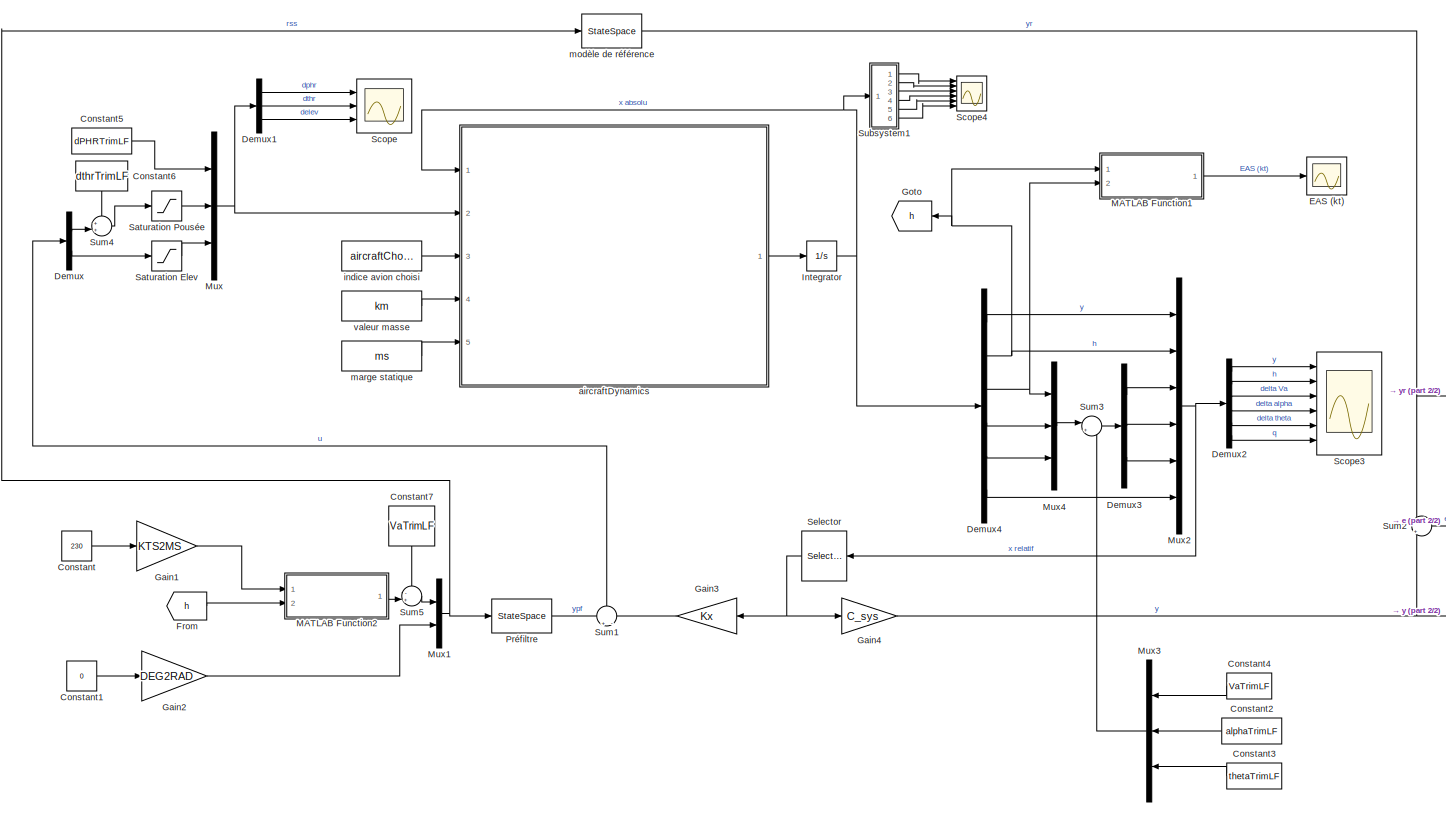
[diagram: root canvas - part 1/2, most of the canvas]
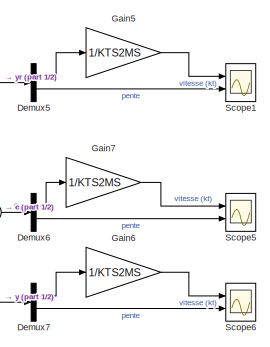
[diagram: root canvas - part 2/2, middle right region]
MODEL slx_b275f4780516
KIND model
CONFIG AbsTol = auto
CONFIG EnableMultiTasking = off
CONFIG FixedStep = auto
CONFIG MaxStep = auto
CONFIG MinStep = auto
CONFIG RelTol = 1e-3
CONFIG SampleTimeConstraint = Unconstrained
CONFIG Solver = VariableStepAuto
CONFIG SolverName = VariableStepAuto
CONFIG StartTime = 0.0
CONFIG StopTime = 1000
BLOCK [Constant] Constant
  Value = 230
BLOCK [Constant] Constant1
  Value = 0
BLOCK [Constant] Constant2
  Value = alphaTrimLF
BLOCK [Constant] Constant3
  Value = thetaTrimLF
BLOCK [Constant] Constant4
  Value = VaTrimLF
BLOCK [Constant] Constant5
  Value = dPHRTrimLF
BLOCK [Constant] Constant6
  Value = dthrTrimLF
BLOCK [Constant] Constant7
  Value = VaTrimLF
BLOCK [Demux] Demux
  DisplayOption = bar
  Outputs = 2
  Ports = [1, 2]
BLOCK [Demux] Demux1
  DisplayOption = bar
  Outputs = 3
  Ports = [1, 3]
BLOCK [Demux] Demux2
  DisplayOption = bar
  Outputs = 6
  Ports = [1, 6]
BLOCK [Demux] Demux3
  DisplayOption = bar
  Outputs = 3
  Ports = [1, 3]
BLOCK [Demux] Demux4
  DisplayOption = bar
  Outputs = 6
  Ports = [1, 6]
BLOCK [Demux] Demux5
  DisplayOption = bar
  Outputs = 2
  Ports = [1, 2]
BLOCK [Demux] Demux6
  DisplayOption = bar
  Outputs = 2
  Ports = [1, 2]
BLOCK [Demux] Demux7
  DisplayOption = bar
  Outputs = 2
  Ports = [1, 2]
BLOCK [Scope] EAS (kt)
  Floating = off
  NumInputPorts = 1
  Ports = [1]
  ScopeSpecificationString = Simulink.scopes.TimeScopeBlockCfg('CurrentConfiguration', extmgr.ConfigurationSet(extmgr.Configuration('Core','General UI',true,'FigureColor',[1 1 1]),extmgr.Configuration('Core','Source UI',true),extmgr.Configuration('Sources','WiredSimulink',true,'DataLoggingVariableName','ScopeData3'),extmgr.Configuration('Visuals','Time Domain',true,'SerializedDisplays',{struct('MinYLimReal','225.09828','MaxYL...<+1632ch>
BLOCK [From] From
  GotoTag = h
BLOCK [Gain] Gain1
  Gain = KTS2MS
  OutDataTypeStr = Inherit: Inherit via internal rule
  ParamDataTypeStr = Inherit: Inherit via internal rule
  SaturateOnIntegerOverflow = off
BLOCK [Gain] Gain2
  Gain = DEG2RAD
  OutDataTypeStr = Inherit: Inherit via internal rule
  ParamDataTypeStr = Inherit: Inherit via internal rule
  SaturateOnIntegerOverflow = off
BLOCK [Gain] Gain3
  Gain = Kx
  Multiplication = Matrix(K*u) (u vector)
  OutDataTypeStr = Inherit: Inherit via internal rule
  ParamDataTypeStr = Inherit: Inherit via internal rule
  SaturateOnIntegerOverflow = off
BLOCK [Gain] Gain4
  Gain = C_sys
  Multiplication = Matrix(K*u) (u vector)
  OutDataTypeStr = Inherit: Inherit via internal rule
  ParamDataTypeStr = Inherit: Inherit via internal rule
  SaturateOnIntegerOverflow = off
BLOCK [Gain] Gain5
  Gain = 1/KTS2MS
  OutDataTypeStr = Inherit: Inherit via internal rule
  ParamDataTypeStr = Inherit: Inherit via internal rule
  SaturateOnIntegerOverflow = off
BLOCK [Gain] Gain6
  Gain = 1/KTS2MS
  OutDataTypeStr = Inherit: Inherit via internal rule
  ParamDataTypeStr = Inherit: Inherit via internal rule
  SaturateOnIntegerOverflow = off
BLOCK [Gain] Gain7
  Gain = 1/KTS2MS
  OutDataTypeStr = Inherit: Inherit via internal rule
  ParamDataTypeStr = Inherit: Inherit via internal rule
  SaturateOnIntegerOverflow = off
BLOCK [Goto] Goto
  GotoTag = h
BLOCK [Integrator] Integrator
  InitialCondition = xTrim
  Ports = [1, 1]
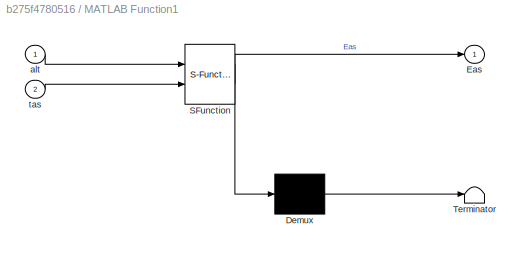
BLOCK [SubSystem] MATLAB Function1
  ErrorFcn = Stateflow.Translate.translate
  PermitHierarchicalResolution = ExplicitOnly
  Ports = [2, 1]
  RequestExecContextInheritance = off
  SFBlockType = MATLAB Function
  TreatAsAtomicUnit = on
BLOCK [Demux] MATLAB Function1/ Demux 
  Outputs = 1
  Ports = [1, 1]
BLOCK [S-Function] MATLAB Function1/ SFunction 
  EnableBusSupport = on
  FunctionName = sf_sfun
  PortCounts = [2 2]
  Ports = [2, 2]
  SFcnIsStateOwnerBlock = off
  SFunctionDeploymentMode = off
  Tag = Stateflow S-Function Golf_Nonlin_Optimale 3
BLOCK [Terminator] MATLAB Function1/ Terminator 
BLOCK [Outport] MATLAB Function1/Eas
  IconDisplay = Port number
BLOCK [Inport] MATLAB Function1/alt
  IconDisplay = Port number
BLOCK [Inport] MATLAB Function1/tas
  IconDisplay = Port number
  Port = 2
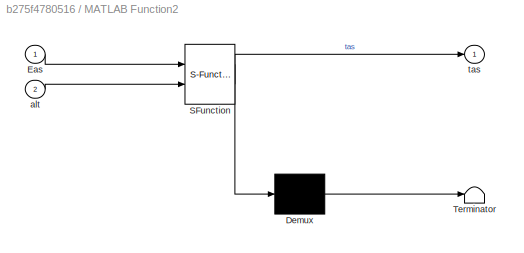
BLOCK [SubSystem] MATLAB Function2
  ErrorFcn = Stateflow.Translate.translate
  PermitHierarchicalResolution = ExplicitOnly
  Ports = [2, 1]
  RequestExecContextInheritance = off
  SFBlockType = MATLAB Function
  TreatAsAtomicUnit = on
BLOCK [Demux] MATLAB Function2/ Demux 
  Outputs = 1
  Ports = [1, 1]
BLOCK [S-Function] MATLAB Function2/ SFunction 
  EnableBusSupport = on
  FunctionName = sf_sfun
  PortCounts = [2 2]
  Ports = [2, 2]
  SFcnIsStateOwnerBlock = off
  SFunctionDeploymentMode = off
  Tag = Stateflow S-Function Golf_Nonlin_Optimale 1
BLOCK [Terminator] MATLAB Function2/ Terminator 
BLOCK [Inport] MATLAB Function2/Eas
  IconDisplay = Port number
BLOCK [Inport] MATLAB Function2/alt
  IconDisplay = Port number
  Port = 2
BLOCK [Outport] MATLAB Function2/tas
  IconDisplay = Port number
BLOCK [Mux] Mux
  DisplayOption = bar
  Inputs = 3
  Ports = [3, 1]
BLOCK [Mux] Mux1
  DisplayOption = bar
  Inputs = 2
  Ports = [2, 1]
BLOCK [Mux] Mux2
  DisplayOption = bar
  Inputs = 6
  Ports = [6, 1]
BLOCK [Mux] Mux3
  DisplayOption = bar
  Inputs = 3
  Ports = [3, 1]
BLOCK [Mux] Mux4
  DisplayOption = bar
  Inputs = 3
  Ports = [3, 1]
BLOCK [StateSpace] Préfiltre
  A = Ar
  B = Br
  C = -Kr
  D = Dpf
  InitialCondition = 0
  Ports = [1, 1]
BLOCK [Saturate] Saturation Elev
  InputPortMap = u0
  LowerLimit = -30*DEG2RAD
  Ports = [1, 1]
  UpperLimit = 30*DEG2RAD
BLOCK [Saturate] Saturation Pousée
  InputPortMap = u0
  LowerLimit = 0
  Ports = [1, 1]
  UpperLimit = 1
BLOCK [Scope] Scope
  Floating = off
  NumInputPorts = 3
  Ports = [3]
  ScopeSpecificationString = Simulink.scopes.TimeScopeBlockCfg('CurrentConfiguration', extmgr.ConfigurationSet(extmgr.Configuration('Core','General UI',true),extmgr.Configuration('Core','Source UI',true),extmgr.Configuration('Sources','WiredSimulink',true),extmgr.Configuration('Visuals','Time Domain',true,'SerializedDisplays',{struct('MinYLimReal','-0.50918','MaxYLimReal','0.38958','YLabelReal','','MinYLimMag','0.00000','MaxY...<+1392ch>
BLOCK [Scope] Scope1
  Floating = off
  NumInputPorts = 2
  Ports = [2]
  ScopeSpecificationString = Simulink.scopes.TimeScopeBlockCfg('CurrentConfiguration', extmgr.ConfigurationSet(extmgr.Configuration('Core','General UI',true),extmgr.Configuration('Core','Source UI',true),extmgr.Configuration('Sources','WiredSimulink',true,'DataLoggingVariableName','ScopeData1'),extmgr.Configuration('Visuals','Time Domain',true,'SerializedDisplays',{struct('MinYLimReal','-5.97208','MaxYLimReal','53.74868','YLa...<+1444ch>
BLOCK [Scope] Scope3
  Floating = off
  NumInputPorts = 6
  Ports = [6]
  ScopeSpecificationString = Simulink.scopes.TimeScopeBlockCfg('CurrentConfiguration', extmgr.ConfigurationSet(extmgr.Configuration('Core','General UI',true,'FigureColor',[1 1 1]),extmgr.Configuration('Core','Source UI',true),extmgr.Configuration('Sources','WiredSimulink',true,'DataLoggingVariableName','ScopeData4'),extmgr.Configuration('Visuals','Time Domain',true,'SerializedDisplays',{struct('MinYLimReal','-1683.85848','Max...<+2334ch>
BLOCK [Scope] Scope4
  Floating = off
  NumInputPorts = 6
  Ports = [6]
  ScopeSpecificationString = Simulink.scopes.TimeScopeBlockCfg('CurrentConfiguration', extmgr.ConfigurationSet(extmgr.Configuration('Core','General UI',true),extmgr.Configuration('Core','Source UI',true),extmgr.Configuration('Sources','WiredSimulink',true,'DataLoggingVariableName','ScopeData5'),extmgr.Configuration('Visuals','Time Domain',true,'SerializedDisplays',{struct('MinYLimReal','-1880.04271','MaxYLimReal','16919.3409'...<+1698ch>
BLOCK [Scope] Scope5
  Floating = off
  NumInputPorts = 2
  Ports = [2]
  ScopeSpecificationString = Simulink.scopes.TimeScopeBlockCfg('CurrentConfiguration', extmgr.ConfigurationSet(extmgr.Configuration('Core','General UI',true),extmgr.Configuration('Core','Source UI',true),extmgr.Configuration('Sources','WiredSimulink',true,'DataLoggingVariableName','ScopeData6'),extmgr.Configuration('Visuals','Time Domain',true,'SerializedDisplays',{struct('MinYLimReal','-4.19413','MaxYLimReal','88.22895','YLa...<+1440ch>
BLOCK [Scope] Scope6
  Floating = off
  NumInputPorts = 2
  Ports = [2]
  ScopeSpecificationString = Simulink.scopes.TimeScopeBlockCfg('CurrentConfiguration', extmgr.ConfigurationSet(extmgr.Configuration('Core','General UI',true),extmgr.Configuration('Core','Source UI',true),extmgr.Configuration('Sources','WiredSimulink',true,'DataLoggingVariableName','ScopeData7'),extmgr.Configuration('Visuals','Time Domain',true,'SerializedDisplays',{struct('MinYLimReal','-11.06482','MaxYLimReal','98.62637','YL...<+1446ch>
BLOCK [Selector] Selector
  IndexOptions = Index vector (dialog)
  Indices = [3:6]
  InputPortWidth = 6
  OutputSizes = 1
  Ports = [1, 1]
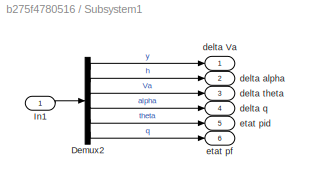
BLOCK [SubSystem] Subsystem1
  Ports = [1, 6]
  RequestExecContextInheritance = off
  ShowPortLabels = none
BLOCK [Demux] Subsystem1/Demux2
  DisplayOption = bar
  Outputs = 6
  Ports = [1, 6]
BLOCK [Inport] Subsystem1/In1
  IconDisplay = Port number
BLOCK [Outport] Subsystem1/delta Va
  IconDisplay = Port number
BLOCK [Outport] Subsystem1/delta alpha
  IconDisplay = Port number
  Port = 2
BLOCK [Outport] Subsystem1/delta q
  IconDisplay = Port number
  Port = 4
BLOCK [Outport] Subsystem1/delta theta
  IconDisplay = Port number
  Port = 3
BLOCK [Outport] Subsystem1/etat pf
  IconDisplay = Port number
  Port = 6
BLOCK [Outport] Subsystem1/etat pid
  IconDisplay = Port number
  Port = 5
BLOCK [Sum] Sum1
  IconShape = round
  InputSameDT = off
  Inputs = +|-
  OutDataTypeStr = Inherit: Inherit via internal rule
  Ports = [2, 1]
  SaturateOnIntegerOverflow = off
BLOCK [Sum] Sum2
  IconShape = round
  InputSameDT = off
  Inputs = -|+
  OutDataTypeStr = Inherit: Inherit via internal rule
  Ports = [2, 1]
  SaturateOnIntegerOverflow = off
BLOCK [Sum] Sum3
  IconShape = round
  InputSameDT = off
  Inputs = |+-
  OutDataTypeStr = Inherit: Inherit via internal rule
  Ports = [2, 1]
  SaturateOnIntegerOverflow = off
BLOCK [Sum] Sum4
  IconShape = round
  InputSameDT = off
  Inputs = ++|
  OutDataTypeStr = Inherit: Inherit via internal rule
  Ports = [2, 1]
  SaturateOnIntegerOverflow = off
BLOCK [Sum] Sum5
  IconShape = round
  InputSameDT = off
  Inputs = -+|
  OutDataTypeStr = Inherit: Inherit via internal rule
  Ports = [2, 1]
  SaturateOnIntegerOverflow = off
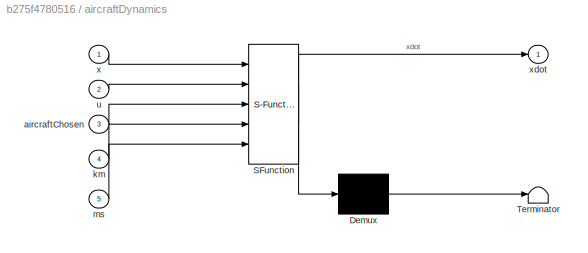
BLOCK [SubSystem] aircraftDynamics
  ErrorFcn = Stateflow.Translate.translate
  PermitHierarchicalResolution = ExplicitOnly
  Ports = [5, 1]
  RequestExecContextInheritance = off
  SFBlockType = MATLAB Function
  TreatAsAtomicUnit = on
BLOCK [Demux] aircraftDynamics/ Demux 
  Outputs = 1
  Ports = [1, 1]
BLOCK [S-Function] aircraftDynamics/ SFunction 
  EnableBusSupport = on
  FunctionName = sf_sfun
  PortCounts = [5 2]
  Ports = [5, 2]
  SFcnIsStateOwnerBlock = off
  SFunctionDeploymentMode = off
  Tag = Stateflow S-Function Golf_Nonlin_Optimale 2
BLOCK [Terminator] aircraftDynamics/ Terminator 
BLOCK [Inport] aircraftDynamics/aircraftChosen
  IconDisplay = Port number
  Port = 3
BLOCK [Inport] aircraftDynamics/km
  IconDisplay = Port number
  Port = 4
BLOCK [Inport] aircraftDynamics/ms
  IconDisplay = Port number
  Port = 5
BLOCK [Inport] aircraftDynamics/u
  IconDisplay = Port number
  Port = 2
BLOCK [Inport] aircraftDynamics/x
  IconDisplay = Port number
BLOCK [Outport] aircraftDynamics/xdot
  IconDisplay = Port number
BLOCK [Constant] indice avion choisi
  Value = aircraftChosen
BLOCK [Constant] marge statique
  Value = ms
BLOCK [StateSpace] modèle de référence
  A = Ar
  B = Br
  C = Cr
  D = Dr
  InitialCondition = 0
  Ports = [1, 1]
BLOCK [Constant] valeur masse
  Value = km
LINE Constant1:1 -> Gain2:1
LINE Constant2:1 -> Mux3:2
LINE Constant3:1 -> Mux3:3
LINE Constant4:1 -> Mux3:1
LINE Constant5:1 -> Mux:1
LINE Constant6:1 -> Sum4:1
LINE Constant7:1 -> Sum5:1
LINE Constant:1 -> Gain1:1
LINE Demux1:1 -> Scope:1
LINE Demux1:2 -> Scope:2
LINE Demux1:3 -> Scope:3
LINE Demux2:1 -> Scope3:1
LINE Demux2:2 -> Scope3:2
LINE Demux2:3 -> Scope3:3
LINE Demux2:4 -> Scope3:4
LINE Demux2:5 -> Scope3:5
LINE Demux2:6 -> Scope3:6
LINE Demux3:1 -> Mux2:3
LINE Demux3:2 -> Mux2:4
LINE Demux3:3 -> Mux2:5
LINE Demux4:1 -> Mux2:1
NET Demux4:2 -> Goto:1, MATLAB Function1:1, Mux2:2
NET Demux4:3 -> MATLAB Function1:2, Mux4:1
LINE Demux4:4 -> Mux4:2
LINE Demux4:5 -> Mux4:3
LINE Demux4:6 -> Mux2:6
LINE Demux5:1 -> Gain5:1
LINE Demux5:2 -> Scope1:2
LINE Demux6:1 -> Gain7:1
LINE Demux6:2 -> Scope5:2
LINE Demux7:1 -> Gain6:1
LINE Demux7:2 -> Scope6:2
LINE Demux:1 -> Sum4:2
LINE Demux:2 -> Saturation Elev:1
LINE From:1 -> MATLAB Function2:2
LINE Gain1:1 -> MATLAB Function2:1
LINE Gain2:1 -> Mux1:2
LINE Gain3:1 -> Sum1:2
NET Gain4:1 -> Demux7:1, Sum2:2
LINE Gain5:1 -> Scope1:1
LINE Gain6:1 -> Scope6:1
LINE Gain7:1 -> Scope5:1
NET Integrator:1 -> Demux4:1, Subsystem1:1, aircraftDynamics:1
LINE MATLAB Function1:1 -> EAS (kt):1
LINE MATLAB Function2:1 -> Sum5:2
NET Mux1:1 -> Préfiltre:1, modèle de référence:1
NET Mux2:1 -> Demux2:1, Selector:1
LINE Mux3:1 -> Sum3:2
LINE Mux4:1 -> Sum3:1
NET Mux:1 -> Demux1:1, aircraftDynamics:2
LINE Préfiltre:1 -> Sum1:1
LINE Saturation Elev:1 -> Mux:3
LINE Saturation Pousée:1 -> Mux:2
NET Selector:1 -> Gain3:1, Gain4:1
LINE Subsystem1/Demux2:1 -> Subsystem1/delta Va:1
LINE Subsystem1/Demux2:2 -> Subsystem1/delta alpha:1
LINE Subsystem1/Demux2:3 -> Subsystem1/delta theta:1
LINE Subsystem1/Demux2:4 -> Subsystem1/delta q:1
LINE Subsystem1/Demux2:5 -> Subsystem1/etat pid:1
LINE Subsystem1/Demux2:6 -> Subsystem1/etat pf:1
LINE Subsystem1/In1:1 -> Subsystem1/Demux2:1
LINE Subsystem1:1 -> Scope4:1
LINE Subsystem1:2 -> Scope4:2
LINE Subsystem1:3 -> Scope4:3
LINE Subsystem1:4 -> Scope4:4
LINE Subsystem1:5 -> Scope4:5
LINE Subsystem1:6 -> Scope4:6
LINE Sum1:1 -> Demux:1
LINE Sum2:1 -> Demux6:1
LINE Sum3:1 -> Demux3:1
LINE Sum4:1 -> Saturation Pousée:1
LINE Sum5:1 -> Mux1:1
LINE aircraftDynamics:1 -> Integrator:1
LINE indice avion choisi:1 -> aircraftDynamics:3
LINE marge statique:1 -> aircraftDynamics:5
NET modèle de référence:1 -> Demux5:1, Sum2:1
LINE valeur masse:1 -> aircraftDynamics:4
note: NET lines group one-source signal fan-out (src -> all destinations, sorted); 1:1 wires keep LINE
CHART MATLAB Function2 states=1 transitions=1
  STATE_LABEL 'eML_blk_kernel()'
  STATE_LABEL 'SCRIPT:\nfunction tas = utEas2tas(Eas, alt)\n    %tas, Eas (%equivalent vitesse) en m/s\n    %alt en m\n    %cf. http://www.hochwarth.com/misc/AviationCalculator.html\n    tas = sqrt(utRho(0)/utRho(alt))*Eas;\nend '
CHART aircraftDynamics states=1 transitions=1
  STATE_LABEL 'eML_blk_kernel()'
  STATE_LABEL 'SCRIPT:\nfunction xdot = aircraftDynamics(x,u, aircraftChosen,km,ms)\n    TOTAL_SV = 6;\n    xIn = zeros(TOTAL_SV,1);\n    xIn = x;\n    \n\tTOTAL_CMD = 3;\n    uIn = zeros(TOTAL_CMD,1);\n    uIn = u;\n    \n    xdot = utAcDynamicsFunction(xIn,uIn, aircraftChosen,km,ms);\nend %aircraftDynamics\n\n'
CHART MATLAB Function1 states=1 transitions=1
  STATE_LABEL 'eML_blk_kernel()'
  STATE_LABEL 'SCRIPT:\nfunction Eas = utTas2Eas(alt, tas)\n    %tas, Eas(%equivalent vitesse) en m/s\n    %alt en m\n    %cf. http://www.hochwarth.com/misc/AviationCalculator.html\n    Eas = sqrt(utRho(alt)/utRho(0))*tas/0.5144;\n    %sortie en kt\nend '
